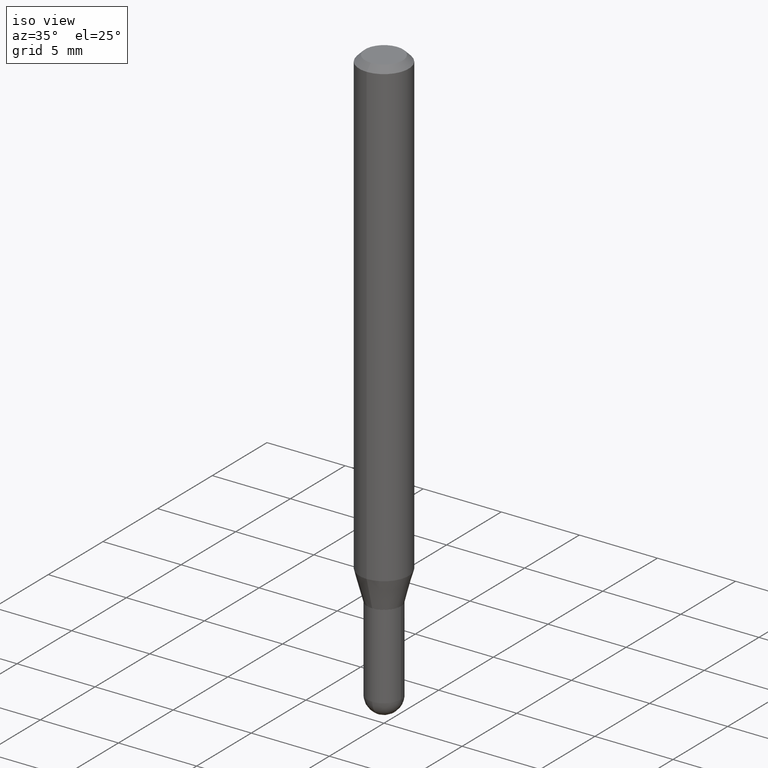
[diagram: clean part render]
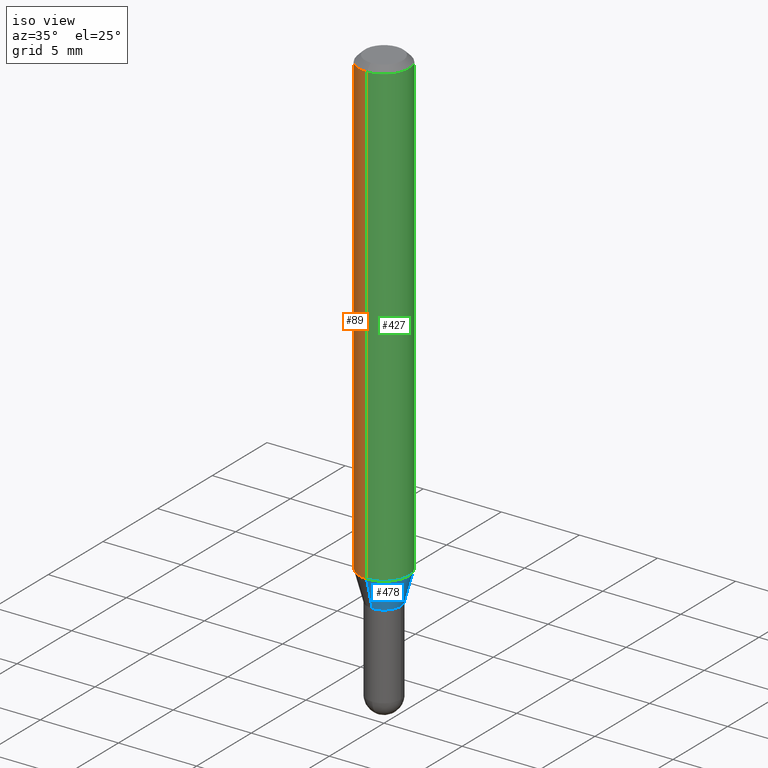
[diagram: same view with three faces highlighted in distinct colors, each labeled with its STEP entity id]
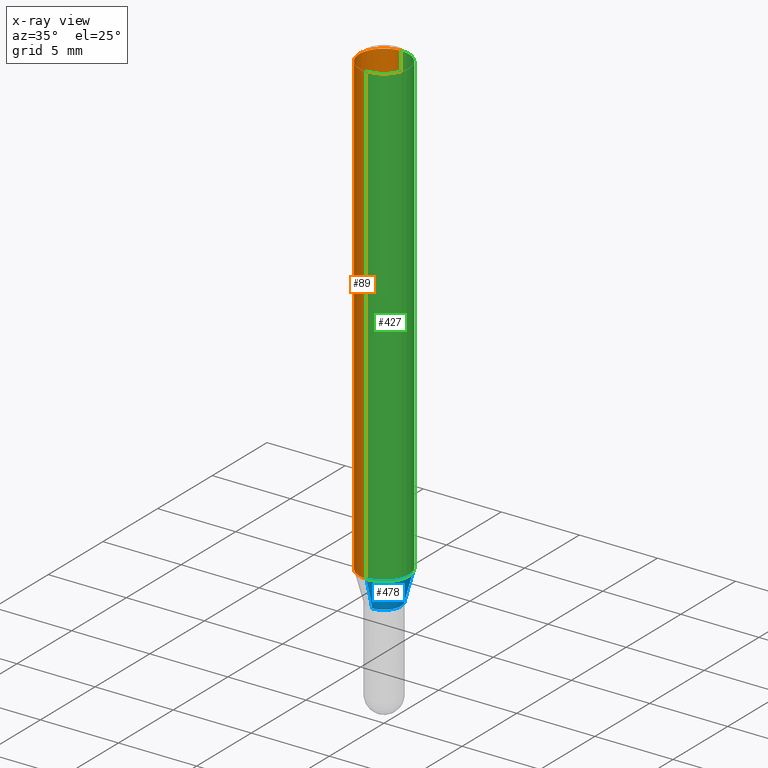
[diagram: x-ray of the same camera — body ghosted, the three highlighted faces saturated]
A machine part, iso view with three faces highlighted in distinct colors.
The next image is the same camera in x-ray (body ghosted, the three faces saturated) — at least one of them is partly hidden behind the body in this view.
Their STEP definitions:

[orange] entity #89 — the highlighted cylindrical surface (edge-blend (fillet) strip) has radius 1.5875 mm, axis along (-0, 0, 1).
#40 = DIRECTION ( 'NONE',  ( -2.445500284585847843E-29, 3.491436259981687850E-15, 1.000000000000000000 ) ) ;
#42 = ORIENTED_EDGE ( 'NONE', *, *, #420, .T. ) ;
#77 = VECTOR ( 'NONE', #40, 39.37007874015748143 ) ;
#89 = ADVANCED_FACE ( 'NONE', ( #501 ), #465, .T. ) ;
#92 = VERTEX_POINT ( 'NONE', #203 ) ;
#109 = CIRCLE ( 'NONE', #399, 0.06250000000000000000 ) ;
#136 = EDGE_CURVE ( 'NONE', #455, #500, #212, .T. ) ;
#156 = LINE ( 'NONE', #193, #463 ) ;
#158 = EDGE_LOOP ( 'NONE', ( #275, #215, #42, #191 ) ) ;
#161 = CARTESIAN_POINT ( 'NONE',  ( 4.440892098500625669E-16, 0.06250000000000000000, -2.182147662488554906E-16 ) ) ;
#165 = DIRECTION ( 'NONE',  ( -2.445500284585847843E-29, 3.491436259981687850E-15, 1.000000000000000000 ) ) ;
#191 = ORIENTED_EDGE ( 'NONE', *, *, #408, .F. ) ;
#193 = CARTESIAN_POINT ( 'NONE',  ( -4.364351673553916201E-16, -0.06250000000000000000, 2.182147662488554906E-16 ) ) ;
#196 = CARTESIAN_POINT ( 'NONE',  ( 4.440892098500914096E-16, 0.06249999999999594075, -1.170358983848625689 ) ) ;
#198 = DIRECTION ( 'NONE',  ( -2.445500284585847843E-29, 3.491436259981687850E-15, 1.000000000000000000 ) ) ;
#203 = CARTESIAN_POINT ( 'NONE',  ( 4.440892098500914096E-16, 0.06249999999999995143, -0.01500000000000028394 ) ) ;
#204 = CARTESIAN_POINT ( 'NONE',  ( -4.364351673553912750E-16, -0.06250000000000005551, -0.01499999999999984852 ) ) ;
#208 = DIRECTION ( 'NONE',  ( -6.982962677686265922E-15, -1.000000000000000000, 4.370956789862821150E-15 ) ) ;
#212 = CIRCLE ( 'NONE', #482, 0.06250000000000000000 ) ;
#215 = ORIENTED_EDGE ( 'NONE', *, *, #136, .T. ) ;
#227 = DIRECTION ( 'NONE',  ( -2.445500284585847843E-29, 3.491436259981687850E-15, 1.000000000000000000 ) ) ;
#246 = EDGE_CURVE ( 'NONE', #455, #92, #400, .T. ) ;
#247 = CARTESIAN_POINT ( 'NONE',  ( 2.862113228069417180E-29, -4.086233793404413887E-15, -1.170358983848625467 ) ) ;
#258 = VERTEX_POINT ( 'NONE', #204 ) ;
#275 = ORIENTED_EDGE ( 'NONE', *, *, #246, .F. ) ;
#299 = CARTESIAN_POINT ( 'NONE',  ( -4.364351673553628267E-16, -0.06250000000000405231, -1.170358983848625245 ) ) ;
#343 = DIRECTION ( 'NONE',  ( -6.982962677686265922E-15, -1.000000000000000000, 3.483106191921935554E-15 ) ) ;
#345 = DIRECTION ( 'NONE',  ( -6.982962677686265922E-15, -1.000000000000000000, 3.491436259981687850E-15 ) ) ;
#390 = CARTESIAN_POINT ( 'NONE',  ( 0.000000000000000000, 0.000000000000000000, 0.000000000000000000 ) ) ;
#399 = AXIS2_PLACEMENT_3D ( 'NONE', #418, #227, #343 ) ;
#400 = LINE ( 'NONE', #161, #77 ) ;
#408 = EDGE_CURVE ( 'NONE', #92, #258, #109, .T. ) ;
#418 = CARTESIAN_POINT ( 'NONE',  ( 3.668250426878787950E-31, -5.237154389972554751E-17, -0.01500000000000006710 ) ) ;
#420 = EDGE_CURVE ( 'NONE', #500, #258, #156, .T. ) ;
#421 = DIRECTION ( 'NONE',  ( -2.445500284585847843E-29, 3.491436259981687850E-15, 1.000000000000000000 ) ) ;
#455 = VERTEX_POINT ( 'NONE', #196 ) ;
#461 = AXIS2_PLACEMENT_3D ( 'NONE', #390, #198, #345 ) ;
#463 = VECTOR ( 'NONE', #421, 39.37007874015748143 ) ;
#465 = CYLINDRICAL_SURFACE ( 'NONE', #461, 0.06250000000000000000 ) ;
#482 = AXIS2_PLACEMENT_3D ( 'NONE', #247, #165, #208 ) ;
#500 = VERTEX_POINT ( 'NONE', #299 ) ;
#501 = FACE_OUTER_BOUND ( 'NONE', #158, .T. ) ;

[blue] entity #478 — the highlighted conical surface has half-angle 15 deg.
#8 = EDGE_CURVE ( 'NONE', #411, #455, #431, .T. ) ;
#13 = DIRECTION ( 'NONE',  ( -1.807323732225377471E-15, -0.2588190451025249583, 0.9659258262890670910 ) ) ;
#28 = CARTESIAN_POINT ( 'NONE',  ( -2.967759138016372164E-16, -0.04250000000000454109, -1.244999999999999662 ) ) ;
#32 = CARTESIAN_POINT ( 'NONE',  ( 3.019806626980743523E-16, 0.04249999999999585359, -1.245000000000000329 ) ) ;
#59 = CARTESIAN_POINT ( 'NONE',  ( 3.044647854309380213E-29, -4.346838143677201535E-15, -1.244999999999999885 ) ) ;
#63 = DIRECTION ( 'NONE',  ( -2.445500284585847843E-29, 3.491436259981687850E-15, 1.000000000000000000 ) ) ;
#70 = VECTOR ( 'NONE', #13, 39.37007874015748854 ) ;
#84 = VERTEX_POINT ( 'NONE', #28 ) ;
#110 = CARTESIAN_POINT ( 'NONE',  ( 3.730349362740827577E-16, 0.04249999999999585359, -1.245000000000000329 ) ) ;
#144 = FACE_OUTER_BOUND ( 'NONE', #197, .T. ) ;
#148 = DIRECTION ( 'NONE',  ( -2.445500284585847843E-29, 3.491436259981687850E-15, 1.000000000000000000 ) ) ;
#162 = AXIS2_PLACEMENT_3D ( 'NONE', #300, #148, #459 ) ;
#169 = VECTOR ( 'NONE', #271, 39.37007874015748143 ) ;
#196 = CARTESIAN_POINT ( 'NONE',  ( 4.440892098500914096E-16, 0.06249999999999594075, -1.170358983848625689 ) ) ;
#197 = EDGE_LOOP ( 'NONE', ( #444, #491, #484, #338 ) ) ;
#216 = CARTESIAN_POINT ( 'NONE',  ( -2.967759138016372164E-16, -0.04250000000000454109, -1.244999999999999662 ) ) ;
#236 = DIRECTION ( 'NONE',  ( -6.982962677686265922E-15, -1.000000000000000000, 6.427877632151177410E-15 ) ) ;
#245 = CIRCLE ( 'NONE', #372, 0.04250000000000019734 ) ;
#271 = DIRECTION ( 'NONE',  ( 1.839019923739648436E-15, 0.2588190451025317307, 0.9659258262890653146 ) ) ;
#297 = DIRECTION ( 'NONE',  ( -6.982962677686265922E-15, -1.000000000000000000, 6.427877632151177410E-15 ) ) ;
#299 = CARTESIAN_POINT ( 'NONE',  ( -4.364351673553628267E-16, -0.06250000000000405231, -1.170358983848625245 ) ) ;
#300 = CARTESIAN_POINT ( 'NONE',  ( 2.862113228069417180E-29, -4.086233793404413887E-15, -1.170358983848625467 ) ) ;
#327 = EDGE_CURVE ( 'NONE', #84, #500, #374, .T. ) ;
#338 = ORIENTED_EDGE ( 'NONE', *, *, #327, .F. ) ;
#347 = CIRCLE ( 'NONE', #162, 0.06250000000000000000 ) ;
#349 = DIRECTION ( 'NONE',  ( -2.445500284585847843E-29, 3.491436259981687850E-15, 1.000000000000000000 ) ) ;
#372 = AXIS2_PLACEMENT_3D ( 'NONE', #380, #63, #236 ) ;
#374 = LINE ( 'NONE', #216, #70 ) ;
#380 = CARTESIAN_POINT ( 'NONE',  ( 3.044647854309380213E-29, -4.346838143677201535E-15, -1.244999999999999885 ) ) ;
#395 = CONICAL_SURFACE ( 'NONE', #434, 0.04250000000000019734, 0.2617993877991572904 ) ;
#411 = VERTEX_POINT ( 'NONE', #110 ) ;
#431 = LINE ( 'NONE', #32, #169 ) ;
#434 = AXIS2_PLACEMENT_3D ( 'NONE', #59, #349, #297 ) ;
#444 = ORIENTED_EDGE ( 'NONE', *, *, #450, .T. ) ;
#450 = EDGE_CURVE ( 'NONE', #84, #411, #245, .T. ) ;
#455 = VERTEX_POINT ( 'NONE', #196 ) ;
#459 = DIRECTION ( 'NONE',  ( -6.982962677686265922E-15, -1.000000000000000000, 4.370956789862821150E-15 ) ) ;
#478 = ADVANCED_FACE ( 'NONE', ( #144 ), #395, .T. ) ;
#484 = ORIENTED_EDGE ( 'NONE', *, *, #495, .F. ) ;
#491 = ORIENTED_EDGE ( 'NONE', *, *, #8, .T. ) ;
#495 = EDGE_CURVE ( 'NONE', #500, #455, #347, .T. ) ;
#500 = VERTEX_POINT ( 'NONE', #299 ) ;

[green] entity #427 — the highlighted cylindrical surface (edge-blend (fillet) strip) has radius 1.5875 mm, axis along (-0, 0, 1).
#12 = AXIS2_PLACEMENT_3D ( 'NONE', #462, #417, #223 ) ;
#27 = FACE_OUTER_BOUND ( 'NONE', #220, .T. ) ;
#40 = DIRECTION ( 'NONE',  ( -2.445500284585847843E-29, 3.491436259981687850E-15, 1.000000000000000000 ) ) ;
#77 = VECTOR ( 'NONE', #40, 39.37007874015748143 ) ;
#92 = VERTEX_POINT ( 'NONE', #203 ) ;
#118 = CIRCLE ( 'NONE', #336, 0.06250000000000000000 ) ;
#122 = ORIENTED_EDGE ( 'NONE', *, *, #246, .T. ) ;
#128 = ORIENTED_EDGE ( 'NONE', *, *, #132, .F. ) ;
#132 = EDGE_CURVE ( 'NONE', #258, #92, #118, .T. ) ;
#148 = DIRECTION ( 'NONE',  ( -2.445500284585847843E-29, 3.491436259981687850E-15, 1.000000000000000000 ) ) ;
#156 = LINE ( 'NONE', #193, #463 ) ;
#161 = CARTESIAN_POINT ( 'NONE',  ( 4.440892098500625669E-16, 0.06250000000000000000, -2.182147662488554906E-16 ) ) ;
#162 = AXIS2_PLACEMENT_3D ( 'NONE', #300, #148, #459 ) ;
#193 = CARTESIAN_POINT ( 'NONE',  ( -4.364351673553916201E-16, -0.06250000000000000000, 2.182147662488554906E-16 ) ) ;
#196 = CARTESIAN_POINT ( 'NONE',  ( 4.440892098500914096E-16, 0.06249999999999594075, -1.170358983848625689 ) ) ;
#203 = CARTESIAN_POINT ( 'NONE',  ( 4.440892098500914096E-16, 0.06249999999999995143, -0.01500000000000028394 ) ) ;
#204 = CARTESIAN_POINT ( 'NONE',  ( -4.364351673553912750E-16, -0.06250000000000005551, -0.01499999999999984852 ) ) ;
#220 = EDGE_LOOP ( 'NONE', ( #458, #122, #128, #237 ) ) ;
#223 = DIRECTION ( 'NONE',  ( -6.982962677686265922E-15, -1.000000000000000000, 3.491436259981687850E-15 ) ) ;
#237 = ORIENTED_EDGE ( 'NONE', *, *, #420, .F. ) ;
#246 = EDGE_CURVE ( 'NONE', #455, #92, #400, .T. ) ;
#258 = VERTEX_POINT ( 'NONE', #204 ) ;
#266 = CYLINDRICAL_SURFACE ( 'NONE', #12, 0.06250000000000000000 ) ;
#299 = CARTESIAN_POINT ( 'NONE',  ( -4.364351673553628267E-16, -0.06250000000000405231, -1.170358983848625245 ) ) ;
#300 = CARTESIAN_POINT ( 'NONE',  ( 2.862113228069417180E-29, -4.086233793404413887E-15, -1.170358983848625467 ) ) ;
#336 = AXIS2_PLACEMENT_3D ( 'NONE', #475, #510, #355 ) ;
#347 = CIRCLE ( 'NONE', #162, 0.06250000000000000000 ) ;
#355 = DIRECTION ( 'NONE',  ( -6.982962677686265922E-15, -1.000000000000000000, 3.483106191921935554E-15 ) ) ;
#400 = LINE ( 'NONE', #161, #77 ) ;
#417 = DIRECTION ( 'NONE',  ( -2.445500284585847843E-29, 3.491436259981687850E-15, 1.000000000000000000 ) ) ;
#420 = EDGE_CURVE ( 'NONE', #500, #258, #156, .T. ) ;
#421 = DIRECTION ( 'NONE',  ( -2.445500284585847843E-29, 3.491436259981687850E-15, 1.000000000000000000 ) ) ;
#427 = ADVANCED_FACE ( 'NONE', ( #27 ), #266, .T. ) ;
#455 = VERTEX_POINT ( 'NONE', #196 ) ;
#458 = ORIENTED_EDGE ( 'NONE', *, *, #495, .T. ) ;
#459 = DIRECTION ( 'NONE',  ( -6.982962677686265922E-15, -1.000000000000000000, 4.370956789862821150E-15 ) ) ;
#462 = CARTESIAN_POINT ( 'NONE',  ( 0.000000000000000000, 0.000000000000000000, 0.000000000000000000 ) ) ;
#463 = VECTOR ( 'NONE', #421, 39.37007874015748143 ) ;
#475 = CARTESIAN_POINT ( 'NONE',  ( 3.668250426878787950E-31, -5.237154389972554751E-17, -0.01500000000000006710 ) ) ;
#495 = EDGE_CURVE ( 'NONE', #500, #455, #347, .T. ) ;
#500 = VERTEX_POINT ( 'NONE', #299 ) ;
#510 = DIRECTION ( 'NONE',  ( -2.445500284585847843E-29, 3.491436259981687850E-15, 1.000000000000000000 ) ) ;